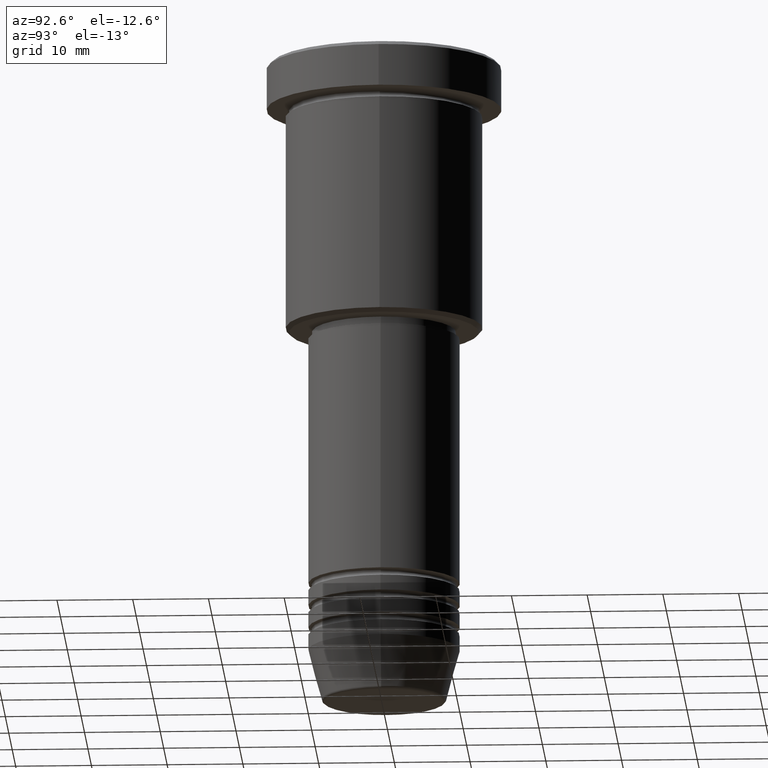
[diagram: clean part render]
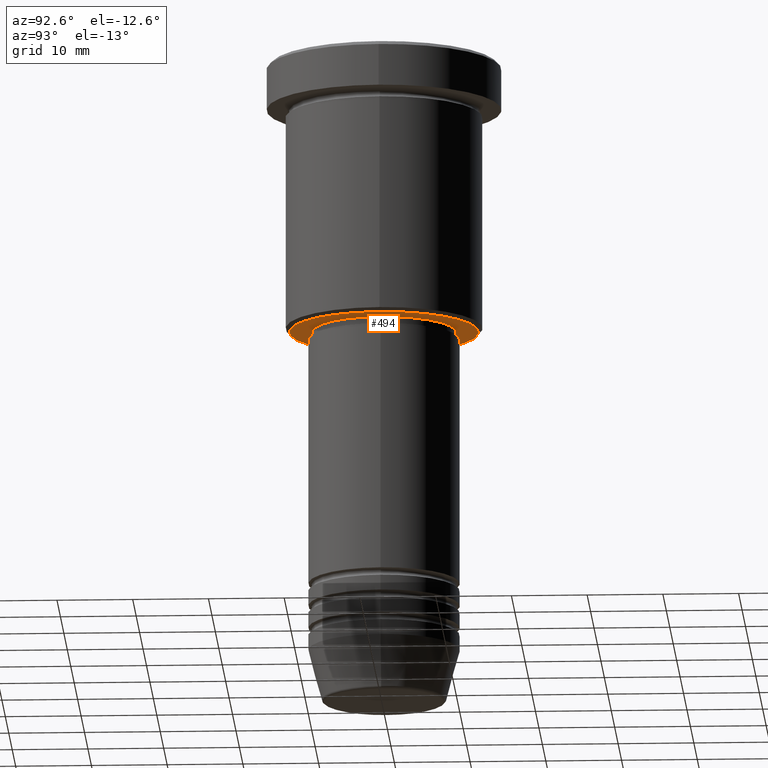
[diagram: same view with one face highlighted and labeled with its STEP entity id]
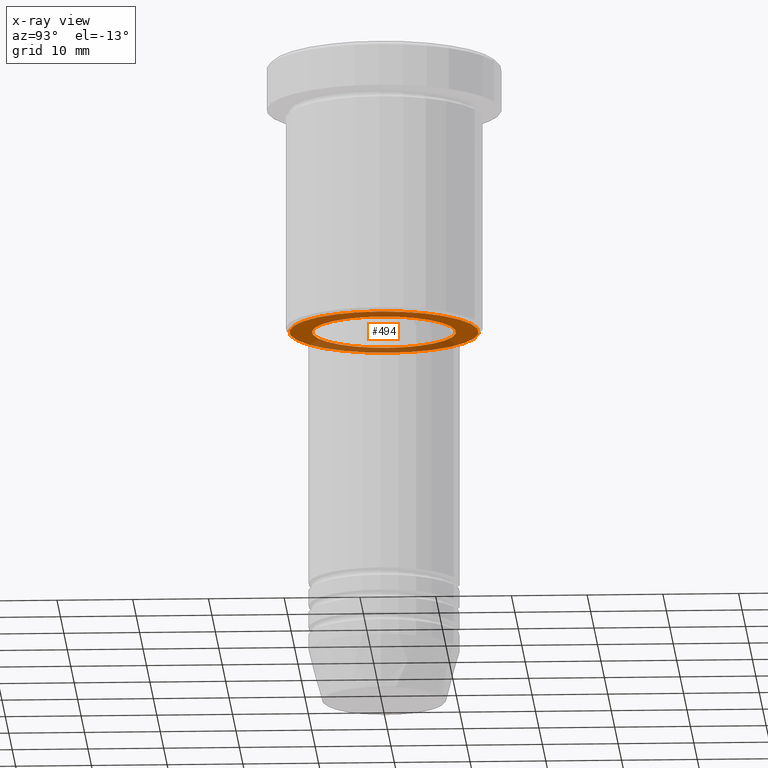
[diagram: x-ray of the same camera — body ghosted, the highlighted face saturated]
A machine part, auxiliary view. The second image highlights one B-rep face of the part: STEP entity #494.
The next image is the same camera in x-ray: the body ghosted, the highlighted face saturated — about 31% of this face is hidden behind the body in this view.
In plain terms, the highlighted planar face has unit normal (0, 0, -1).
Its self-contained STEP definition (entity closure, byte-faithful):
#18 = ORIENTED_EDGE ( 'NONE', *, *, #754, .T. ) ;
#37 = ORIENTED_EDGE ( 'NONE', *, *, #957, .T. ) ;
#54 = DIRECTION ( 'NONE',  ( -1.000000000000000000, 0.000000000000000000, 0.000000000000000000 ) ) ;
#59 = CARTESIAN_POINT ( 'NONE',  ( 12.50000000000000355, 0.000000000000000000, -35.99999999999999289 ) ) ;
#76 = PLANE ( 'NONE',  #126 ) ;
#89 = DIRECTION ( 'NONE',  ( 0.000000000000000000, 0.000000000000000000, -1.000000000000000000 ) ) ;
#126 = AXIS2_PLACEMENT_3D ( 'NONE', #812, #89, #1005 ) ;
#167 = EDGE_LOOP ( 'NONE', ( #37, #18 ) ) ;
#190 = CARTESIAN_POINT ( 'NONE',  ( 0.000000000000000000, 0.000000000000000000, -35.99999999999999289 ) ) ;
#312 = CARTESIAN_POINT ( 'NONE',  ( -9.500000000000000000, 1.163414459189985485E-15, -35.99999999999999289 ) ) ;
#315 = VERTEX_POINT ( 'NONE', #1060 ) ;
#428 = VERTEX_POINT ( 'NONE', #312 ) ;
#434 = DIRECTION ( 'NONE',  ( -0.000000000000000000, -0.000000000000000000, 1.000000000000000000 ) ) ;
#444 = CIRCLE ( 'NONE', #460, 9.500000000000000000 ) ;
#460 = AXIS2_PLACEMENT_3D ( 'NONE', #609, #1059, #1137 ) ;
#494 = ADVANCED_FACE ( 'NONE', ( #996, #712 ), #76, .T. ) ;
#502 = EDGE_CURVE ( 'NONE', #931, #869, #879, .T. ) ;
#506 = AXIS2_PLACEMENT_3D ( 'NONE', #190, #1012, #1182 ) ;
#507 = CIRCLE ( 'NONE', #840, 12.50000000000000355 ) ;
#530 = CARTESIAN_POINT ( 'NONE',  ( 0.000000000000000000, 0.000000000000000000, -35.99999999999999289 ) ) ;
#587 = CIRCLE ( 'NONE', #739, 9.500000000000000000 ) ;
#609 = CARTESIAN_POINT ( 'NONE',  ( 0.000000000000000000, 0.000000000000000000, -35.99999999999999289 ) ) ;
#707 = DIRECTION ( 'NONE',  ( 1.000000000000000000, 0.000000000000000000, 0.000000000000000000 ) ) ;
#711 = CARTESIAN_POINT ( 'NONE',  ( -12.50000000000000355, 1.561424668912875506E-15, -35.99999999999999289 ) ) ;
#712 = FACE_BOUND ( 'NONE', #167, .T. ) ;
#739 = AXIS2_PLACEMENT_3D ( 'NONE', #530, #434, #707 ) ;
#754 = EDGE_CURVE ( 'NONE', #428, #315, #444, .T. ) ;
#807 = EDGE_CURVE ( 'NONE', #869, #931, #507, .T. ) ;
#812 = CARTESIAN_POINT ( 'NONE',  ( 0.000000000000000000, 13.00000000000000000, -35.99999999999999289 ) ) ;
#840 = AXIS2_PLACEMENT_3D ( 'NONE', #976, #959, #54 ) ;
#869 = VERTEX_POINT ( 'NONE', #59 ) ;
#879 = CIRCLE ( 'NONE', #506, 12.50000000000000355 ) ;
#893 = ORIENTED_EDGE ( 'NONE', *, *, #807, .T. ) ;
#931 = VERTEX_POINT ( 'NONE', #711 ) ;
#943 = EDGE_LOOP ( 'NONE', ( #893, #1068 ) ) ;
#957 = EDGE_CURVE ( 'NONE', #315, #428, #587, .T. ) ;
#959 = DIRECTION ( 'NONE',  ( 0.000000000000000000, 0.000000000000000000, -1.000000000000000000 ) ) ;
#976 = CARTESIAN_POINT ( 'NONE',  ( 0.000000000000000000, 0.000000000000000000, -35.99999999999999289 ) ) ;
#996 = FACE_OUTER_BOUND ( 'NONE', #943, .T. ) ;
#1005 = DIRECTION ( 'NONE',  ( -1.000000000000000000, 0.000000000000000000, -0.000000000000000000 ) ) ;
#1012 = DIRECTION ( 'NONE',  ( 0.000000000000000000, 0.000000000000000000, -1.000000000000000000 ) ) ;
#1059 = DIRECTION ( 'NONE',  ( -0.000000000000000000, -0.000000000000000000, 1.000000000000000000 ) ) ;
#1060 = CARTESIAN_POINT ( 'NONE',  ( 9.500000000000000000, 0.000000000000000000, -35.99999999999999289 ) ) ;
#1068 = ORIENTED_EDGE ( 'NONE', *, *, #502, .T. ) ;
#1137 = DIRECTION ( 'NONE',  ( 1.000000000000000000, 0.000000000000000000, 0.000000000000000000 ) ) ;
#1182 = DIRECTION ( 'NONE',  ( -1.000000000000000000, 0.000000000000000000, 0.000000000000000000 ) ) ;